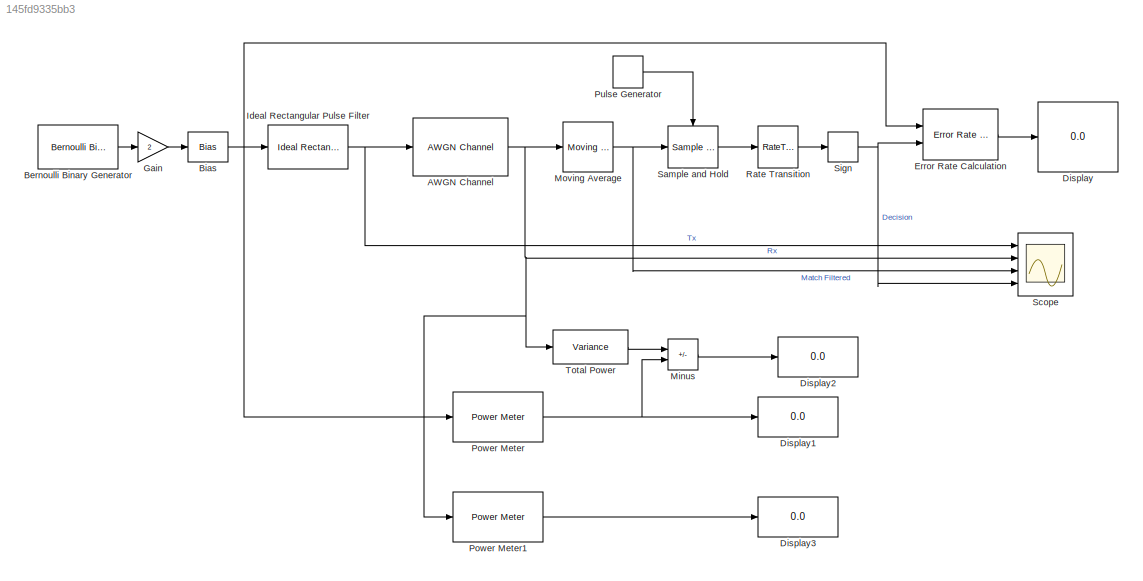
MODEL slx_145fd9335bb3
KIND model
CONFIG AbsTol = auto
CONFIG EnableMultiTasking = off
CONFIG FixedStep = auto
CONFIG MaxStep = auto
CONFIG MinStep = auto
CONFIG RelTol = 1e-3
CONFIG SampleTimeConstraint = Unconstrained
CONFIG SolverName = VariableStepAuto
CONFIG StartTime = 0.0
CONFIG StopTime = 10
BLOCK [Reference] AWGN Channel  REF=commchan3/AWGN
Channel
  Ports = [1, 1]
  SourceBlock = commchan3/AWGN\nChannel
  SourceProductBaseCode = CM
  SourceType = AWGN Channel
  UserDataPersistent = on
BLOCK [Reference] Bernoulli Binary Generator  REF=commrandsrc3/Bernoulli Binary
Generator
  Ports = [0, 1]
  SourceBlock = commrandsrc3/Bernoulli Binary\nGenerator
  SourceProductBaseCode = CM
  SourceType = Bernoulli Binary Generator
BLOCK [Bias] Bias
  Bias = -1
  SaturateOnIntegerOverflow = off
BLOCK [Display] Display
  Decimation = 1
  Ports = [1]
BLOCK [Display] Display1
  Decimation = 1
  Ports = [1]
BLOCK [Display] Display2
  Decimation = 1
  Ports = [1]
BLOCK [Display] Display3
  Decimation = 1
  Ports = [1]
BLOCK [Reference] Error Rate Calculation  REF=commsink2/Error Rate
Calculation
  Ports = [2, 1]
  SourceBlock = commsink2/Error Rate\nCalculation
  SourceProductBaseCode = CM
  SourceType = Error Rate Calculation
BLOCK [Gain] Gain
  Gain = 2
BLOCK [Reference] Ideal Rectangular Pulse Filter  REF=commfilt2/Ideal Rectangular
Pulse Filter
  Ports = [1, 1]
  SourceBlock = commfilt2/Ideal Rectangular\nPulse Filter
  SourceProductBaseCode = CM
  SourceType = Ideal Rectangular Pulse Filter
  UserDataPersistent = on
BLOCK [Sum] Minus
  IconShape = rectangular
  Inputs = +-
  Ports = [2, 1]
BLOCK [Reference] Moving Average  REF=dspstat3/Moving
Average
  Ports = [1, 1]
  SourceBlock = dspstat3/Moving\nAverage
  SourceProductBaseCode = DS
  SourceType = dsp.simulink.MovingAverage
BLOCK [Reference] Power Meter  REF=dspstat3/Power Meter
  Ports = [1, 1]
  SourceBlock = dspstat3/Power Meter
  SourceProductBaseCode = DS
  SourceType = dsp.simulink.PowerMeter
BLOCK [Reference] Power Meter1  REF=dspstat3/Power Meter
  Ports = [1, 1]
  SourceBlock = dspstat3/Power Meter
  SourceProductBaseCode = DS
  SourceType = dsp.simulink.PowerMeter
BLOCK [DiscretePulseGenerator] Pulse Generator
  Period = 100
  Ports = [0, 1]
  SampleTime = 10e-6
BLOCK [RateTransition] Rate Transition
  OutPortSampleTime = 1e-3
BLOCK [Reference] Sample and Hold  REF=dspsigops/Sample
and Hold
  Ports = [1, 1, 0, 1]
  SourceBlock = dspsigops/Sample\nand Hold
  SourceProductBaseCode = DS
  SourceType = Sample and Hold
BLOCK [Scope] Scope
  Floating = off
  NumInputPorts = 4
  Ports = [4]
  ScopeSpecificationString = Simulink.scopes.TimeScopeBlockCfg('CurrentConfiguration', extmgr.ConfigurationSet(extmgr.Configuration('Core','General UI',true),extmgr.Configuration('Core','Source UI',true),extmgr.Configuration('Sources','WiredSimulink',true),extmgr.Configuration('Visuals','Time Domain',true,'SerializedDisplays',{struct('MinYLimReal','-1.25','MaxYLimReal','1.25','YLabelReal','','MinYLimMag','0.00000','MaxYLimMag...<+3371ch>
BLOCK [Signum] Sign
BLOCK [Reference] Total Power  REF=dspstat3/Variance
  Ports = [1, 1]
  SourceBlock = dspstat3/Variance
  SourceProductBaseCode = DS
  SourceType = Variance
  UserDataPersistent = on
NET AWGN Channel:1 -> Moving Average:1, Power Meter1:1, Scope:2, Total Power:1
LINE Bernoulli Binary Generator:1 -> Gain:1
NET Bias:1 -> Error Rate Calculation:1, Ideal Rectangular Pulse Filter:1, Power Meter:1
LINE Error Rate Calculation:1 -> Display:1
LINE Gain:1 -> Bias:1
NET Ideal Rectangular Pulse Filter:1 -> AWGN Channel:1, Scope:1
LINE Minus:1 -> Display2:1
NET Moving Average:1 -> Sample and Hold:1, Scope:3
LINE Power Meter1:1 -> Display3:1
NET Power Meter:1 -> Display1:1, Minus:2
LINE Pulse Generator:1 -> Sample and Hold:trigger
LINE Rate Transition:1 -> Sign:1
LINE Sample and Hold:1 -> Rate Transition:1
NET Sign:1 -> Error Rate Calculation:2, Scope:4
LINE Total Power:1 -> Minus:1
note: NET lines group one-source signal fan-out (src -> all destinations, sorted); 1:1 wires keep LINE
